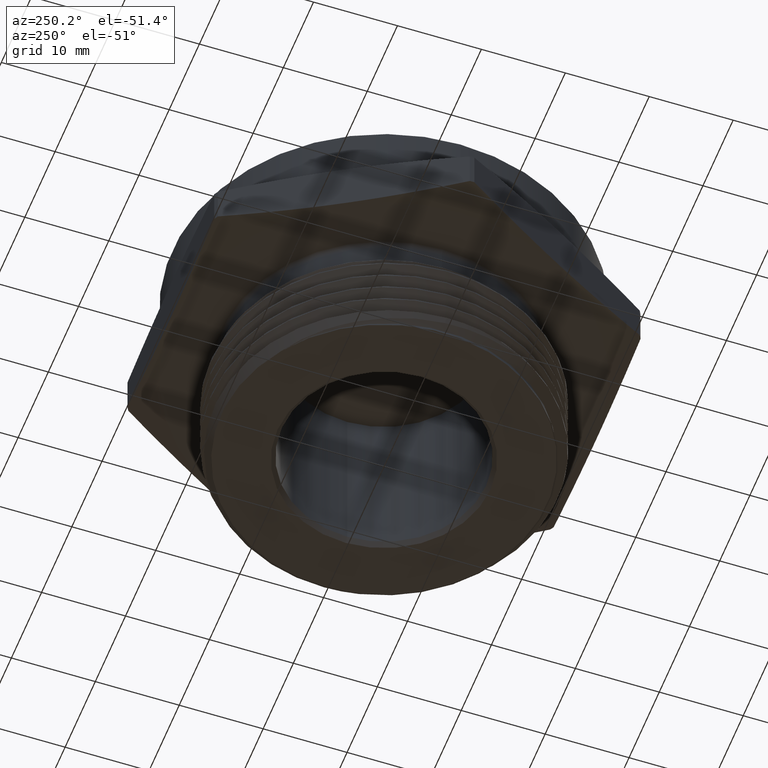
[diagram: clean part render]
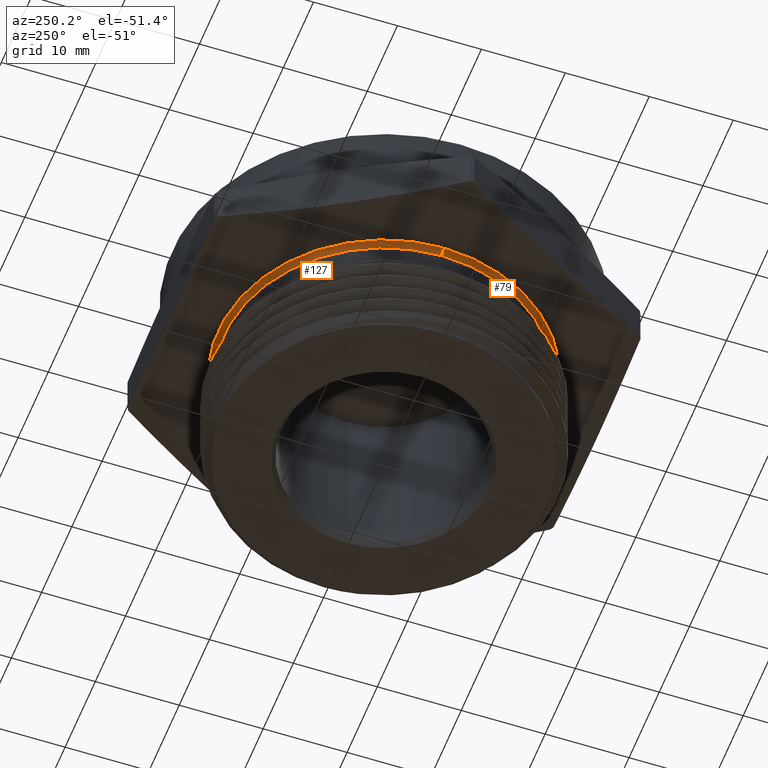
[diagram: same view with one multi-face feature highlighted, each face labeled with its STEP entity id]
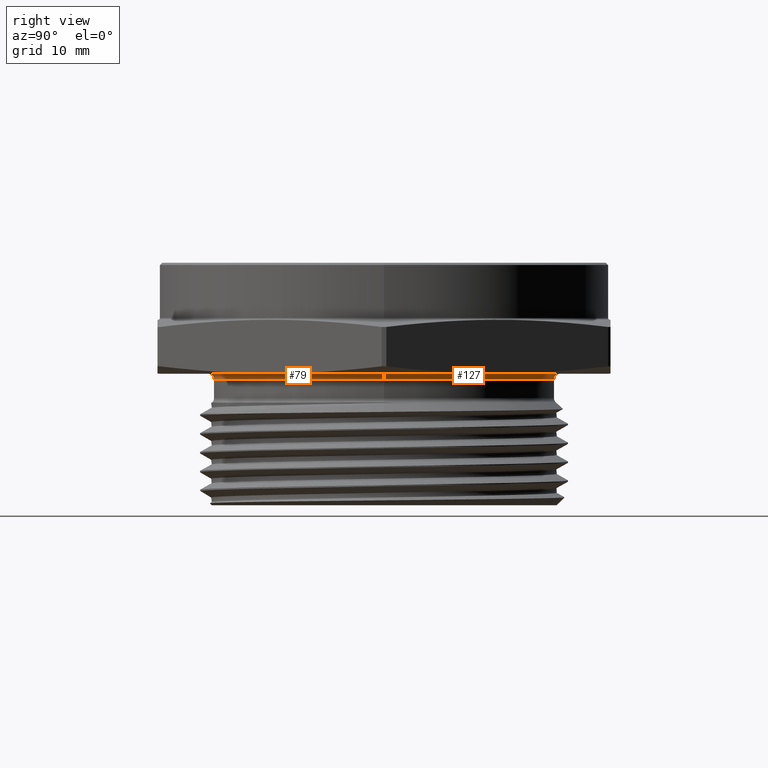
[diagram: same view with one multi-face feature highlighted, each face labeled with its STEP entity id]
A machine part, auxiliary view. The highlighted faces form ONE feature: a constant-radius fillet chain: 2 tangent blend faces with common blend radius 0.635 mm. The faces share edges in the B-rep.
A second angle (right view) of the same feature is appended — it is thin or edge-on in the first view.
Their STEP definitions:
[1] entity #79 (Torus):
#9 = ORIENTED_EDGE ( 'NONE', *, *, #2924, .F. ) ;
#10 = ORIENTED_EDGE ( 'NONE', *, *, #2904, .T. ) ;
#11 = ORIENTED_EDGE ( 'NONE', *, *, #2899, .T. ) ;
#12 = ORIENTED_EDGE ( 'NONE', *, *, #2905, .F. ) ;
#79 = ADVANCED_FACE ( 'NONE', ( #2295 ), #2299, .F. ) ;
#321 = AXIS2_PLACEMENT_3D ( 'NONE', #3260, #3258, #3255 ) ;
#346 = AXIS2_PLACEMENT_3D ( 'NONE', #1998, #1999, #2000 ) ;
#351 = AXIS2_PLACEMENT_3D ( 'NONE', #2369, #2370, #2371 ) ;
#352 = AXIS2_PLACEMENT_3D ( 'NONE', #2373, #2374, #2375 ) ;
#359 = AXIS2_PLACEMENT_3D ( 'NONE', #2510, #2511, #2512 ) ;
#503 = VERTEX_POINT ( 'NONE', #1938 ) ;
#511 = VERTEX_POINT ( 'NONE', #1946 ) ;
#518 = VERTEX_POINT ( 'NONE', #1953 ) ;
#569 = VERTEX_POINT ( 'NONE', #1972 ) ;
#587 = CIRCLE ( 'NONE', #359, 0.7784999999999998600 ) ;
#671 = CIRCLE ( 'NONE', #346, 0.7534999999999999500 ) ;
#689 = CIRCLE ( 'NONE', #351, 0.02500000000000000500 ) ;
#691 = CIRCLE ( 'NONE', #352, 0.02500000000000001200 ) ;
#739 = EDGE_LOOP ( 'NONE', ( #9, #10, #11, #12 ) ) ;
#1938 = CARTESIAN_POINT ( 'NONE',  ( -0.7534999999999999500, 9.227713631575306300E-017, -0.02500000000000004000 ) ) ;
#1946 = CARTESIAN_POINT ( 'NONE',  ( 0.7784999999999998600, 0.0000000000000000000, -3.201384367575308300E-017 ) ) ;
#1953 = CARTESIAN_POINT ( 'NONE',  ( 0.7534999999999999500, 0.0000000000000000000, -0.02500000000000004000 ) ) ;
#1972 = CARTESIAN_POINT ( 'NONE',  ( -0.7784999999999998600, 9.533875331362143900E-017, -3.201384367575308300E-017 ) ) ;
#1998 = CARTESIAN_POINT ( 'NONE',  ( 0.0000000000000000000, 0.0000000000000000000, -0.02500000000000004000 ) ) ;
#1999 = DIRECTION ( 'NONE',  ( -0.0000000000000000000, -0.0000000000000000000, 1.000000000000000000 ) ) ;
#2000 = DIRECTION ( 'NONE',  ( 1.000000000000000000, 0.0000000000000000000, 0.0000000000000000000 ) ) ;
#2295 = FACE_OUTER_BOUND ( 'NONE', #739, .T. ) ;
#2299 = TOROIDAL_SURFACE ( 'NONE', #321, 0.7784999999999998600, 0.02500000000000000500 ) ;
#2369 = CARTESIAN_POINT ( 'NONE',  ( -0.7784999999999998600, 9.533875331362143900E-017, -0.02500000000000003600 ) ) ;
#2370 = DIRECTION ( 'NONE',  ( 1.224646799147353200E-016, 1.000000000000000000, 0.0000000000000000000 ) ) ;
#2371 = DIRECTION ( 'NONE',  ( -1.000000000000000000, 1.224646799147351700E-016, 0.0000000000000000000 ) ) ;
#2373 = CARTESIAN_POINT ( 'NONE',  ( 0.7784999999999998600, 0.0000000000000000000, -0.02500000000000003600 ) ) ;
#2374 = DIRECTION ( 'NONE',  ( 0.0000000000000000000, -1.000000000000000000, 0.0000000000000000000 ) ) ;
#2375 = DIRECTION ( 'NONE',  ( 0.0000000000000000000, 0.0000000000000000000, -1.000000000000000000 ) ) ;
#2510 = CARTESIAN_POINT ( 'NONE',  ( 0.0000000000000000000, 0.0000000000000000000, -3.414809992080329000E-017 ) ) ;
#2511 = DIRECTION ( 'NONE',  ( -0.0000000000000000000, -0.0000000000000000000, 1.000000000000000000 ) ) ;
#2512 = DIRECTION ( 'NONE',  ( 1.000000000000000000, 0.0000000000000000000, 0.0000000000000000000 ) ) ;
#2899 = EDGE_CURVE ( 'NONE', #503, #518, #671, .T. ) ;
#2904 = EDGE_CURVE ( 'NONE', #569, #503, #689, .T. ) ;
#2905 = EDGE_CURVE ( 'NONE', #511, #518, #691, .T. ) ;
#2924 = EDGE_CURVE ( 'NONE', #569, #511, #587, .T. ) ;
#3255 = DIRECTION ( 'NONE',  ( 1.000000000000000000, 0.0000000000000000000, 0.0000000000000000000 ) ) ;
#3258 = DIRECTION ( 'NONE',  ( -0.0000000000000000000, -0.0000000000000000000, 1.000000000000000000 ) ) ;
#3260 = CARTESIAN_POINT ( 'NONE',  ( 0.0000000000000000000, 0.0000000000000000000, -0.02500000000000003600 ) ) ;
[2] entity #127 (Torus):
#32 = EDGE_LOOP ( 'NONE', ( #2350, #2351, #2352, #2353 ) ) ;
#127 = ADVANCED_FACE ( 'NONE', ( #2317 ), #2316, .F. ) ;
#149 = CIRCLE ( 'NONE', #385, 0.7784999999999998600 ) ;
#329 = AXIS2_PLACEMENT_3D ( 'NONE', #3222, #3225, #3220 ) ;
#351 = AXIS2_PLACEMENT_3D ( 'NONE', #2369, #2370, #2371 ) ;
#352 = AXIS2_PLACEMENT_3D ( 'NONE', #2373, #2374, #2375 ) ;
#357 = AXIS2_PLACEMENT_3D ( 'NONE', #2402, #2403, #2404 ) ;
#385 = AXIS2_PLACEMENT_3D ( 'NONE', #871, #872, #873 ) ;
#503 = VERTEX_POINT ( 'NONE', #1938 ) ;
#511 = VERTEX_POINT ( 'NONE', #1946 ) ;
#518 = VERTEX_POINT ( 'NONE', #1953 ) ;
#569 = VERTEX_POINT ( 'NONE', #1972 ) ;
#574 = CIRCLE ( 'NONE', #357, 0.7534999999999999500 ) ;
#689 = CIRCLE ( 'NONE', #351, 0.02500000000000000500 ) ;
#691 = CIRCLE ( 'NONE', #352, 0.02500000000000001200 ) ;
#871 = CARTESIAN_POINT ( 'NONE',  ( 0.0000000000000000000, 0.0000000000000000000, -3.414809992080329000E-017 ) ) ;
#872 = DIRECTION ( 'NONE',  ( -0.0000000000000000000, -0.0000000000000000000, 1.000000000000000000 ) ) ;
#873 = DIRECTION ( 'NONE',  ( 1.000000000000000000, 0.0000000000000000000, 0.0000000000000000000 ) ) ;
#1938 = CARTESIAN_POINT ( 'NONE',  ( -0.7534999999999999500, 9.227713631575306300E-017, -0.02500000000000004000 ) ) ;
#1946 = CARTESIAN_POINT ( 'NONE',  ( 0.7784999999999998600, 0.0000000000000000000, -3.201384367575308300E-017 ) ) ;
#1953 = CARTESIAN_POINT ( 'NONE',  ( 0.7534999999999999500, 0.0000000000000000000, -0.02500000000000004000 ) ) ;
#1972 = CARTESIAN_POINT ( 'NONE',  ( -0.7784999999999998600, 9.533875331362143900E-017, -3.201384367575308300E-017 ) ) ;
#2316 = TOROIDAL_SURFACE ( 'NONE', #329, 0.7784999999999998600, 0.02500000000000000500 ) ;
#2317 = FACE_OUTER_BOUND ( 'NONE', #32, .T. ) ;
#2350 = ORIENTED_EDGE ( 'NONE', *, *, #2904, .F. ) ;
#2351 = ORIENTED_EDGE ( 'NONE', *, *, #2998, .F. ) ;
#2352 = ORIENTED_EDGE ( 'NONE', *, *, #2905, .T. ) ;
#2353 = ORIENTED_EDGE ( 'NONE', *, *, #2917, .T. ) ;
#2369 = CARTESIAN_POINT ( 'NONE',  ( -0.7784999999999998600, 9.533875331362143900E-017, -0.02500000000000003600 ) ) ;
#2370 = DIRECTION ( 'NONE',  ( 1.224646799147353200E-016, 1.000000000000000000, 0.0000000000000000000 ) ) ;
#2371 = DIRECTION ( 'NONE',  ( -1.000000000000000000, 1.224646799147351700E-016, 0.0000000000000000000 ) ) ;
#2373 = CARTESIAN_POINT ( 'NONE',  ( 0.7784999999999998600, 0.0000000000000000000, -0.02500000000000003600 ) ) ;
#2374 = DIRECTION ( 'NONE',  ( 0.0000000000000000000, -1.000000000000000000, 0.0000000000000000000 ) ) ;
#2375 = DIRECTION ( 'NONE',  ( 0.0000000000000000000, 0.0000000000000000000, -1.000000000000000000 ) ) ;
#2402 = CARTESIAN_POINT ( 'NONE',  ( 0.0000000000000000000, 0.0000000000000000000, -0.02500000000000004000 ) ) ;
#2403 = DIRECTION ( 'NONE',  ( -0.0000000000000000000, -0.0000000000000000000, 1.000000000000000000 ) ) ;
#2404 = DIRECTION ( 'NONE',  ( 1.000000000000000000, 0.0000000000000000000, 0.0000000000000000000 ) ) ;
#2904 = EDGE_CURVE ( 'NONE', #569, #503, #689, .T. ) ;
#2905 = EDGE_CURVE ( 'NONE', #511, #518, #691, .T. ) ;
#2917 = EDGE_CURVE ( 'NONE', #518, #503, #574, .T. ) ;
#2998 = EDGE_CURVE ( 'NONE', #511, #569, #149, .T. ) ;
#3220 = DIRECTION ( 'NONE',  ( 1.000000000000000000, 0.0000000000000000000, 0.0000000000000000000 ) ) ;
#3222 = CARTESIAN_POINT ( 'NONE',  ( 0.0000000000000000000, 0.0000000000000000000, -0.02500000000000003600 ) ) ;
#3225 = DIRECTION ( 'NONE',  ( -0.0000000000000000000, -0.0000000000000000000, 1.000000000000000000 ) ) ;